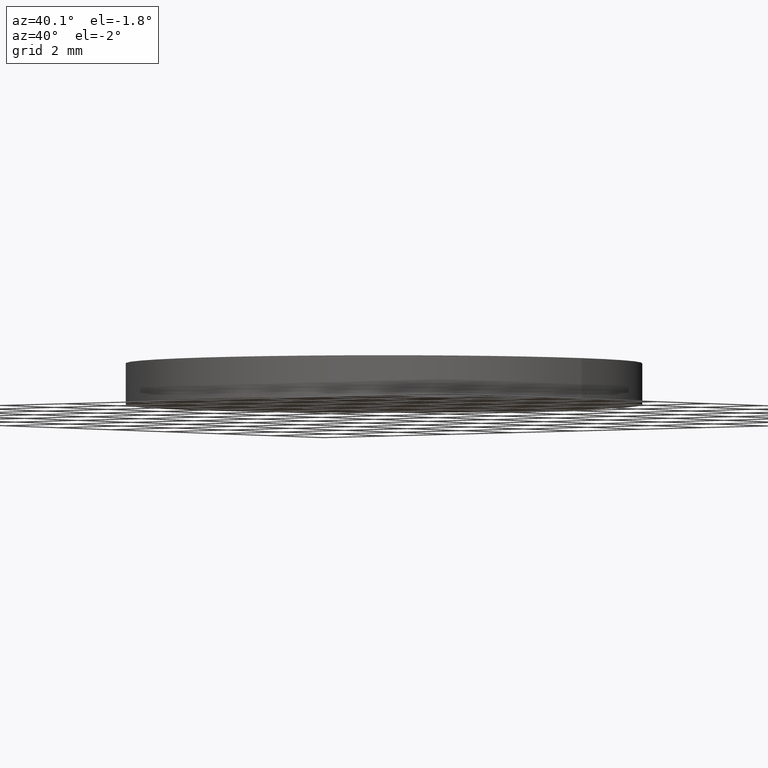
[diagram: clean part render]
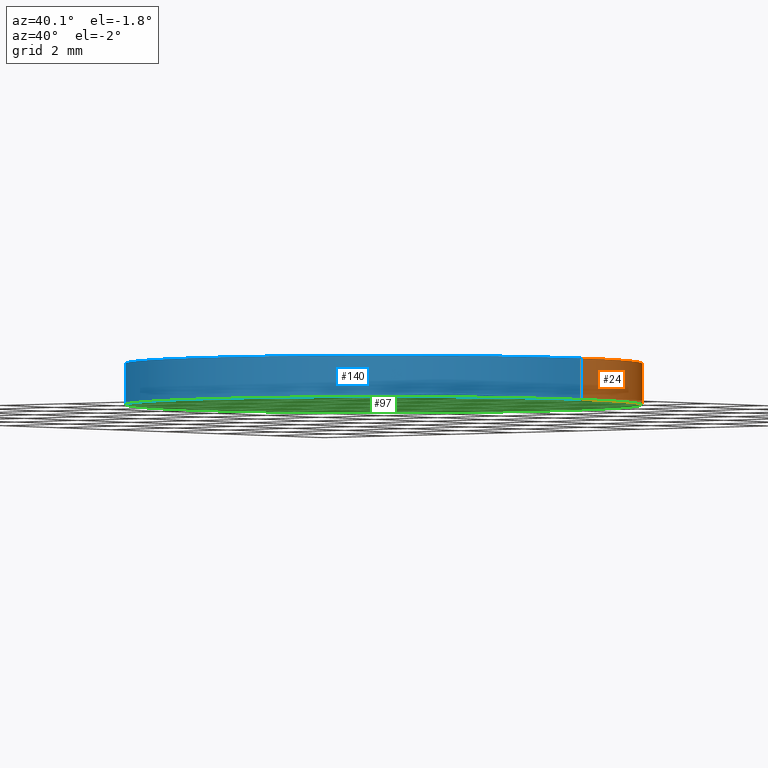
[diagram: same view with three faces highlighted in distinct colors, each labeled with its STEP entity id]
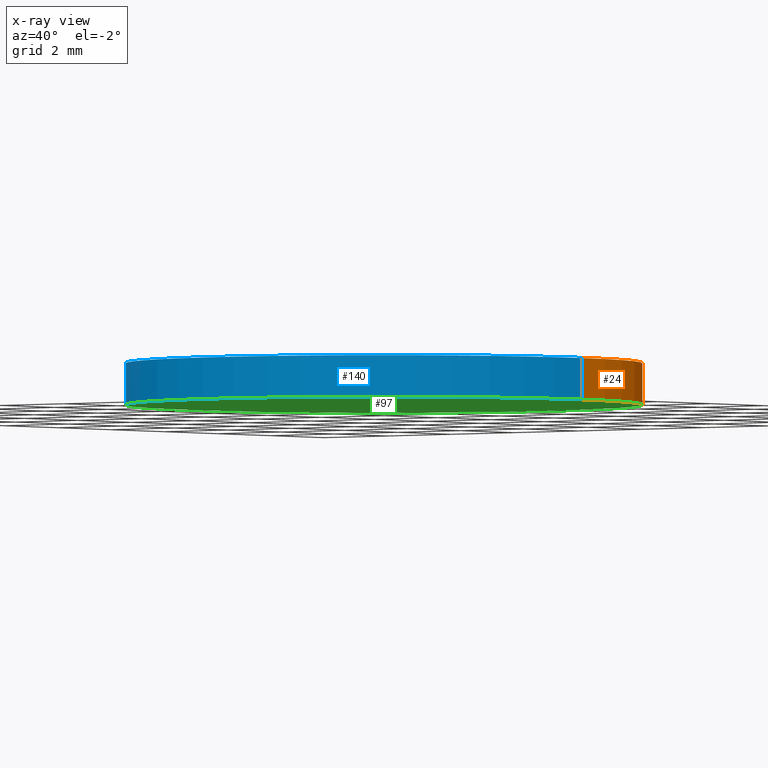
[diagram: x-ray of the same camera — body ghosted, the three highlighted faces saturated]
A machine part, auxiliary view with three faces highlighted in distinct colors.
The next image is the same camera in x-ray (body ghosted, the three faces saturated) — at least one of them is partly hidden behind the body in this view.
Their STEP definitions:

[orange] entity #24 — the highlighted cylindrical surface (partial cylindrical patch) has radius 6.25 mm, axis along (-0, -0, -1).
#3 = VERTEX_POINT ( 'NONE', #18 ) ;
#18 = CARTESIAN_POINT ( 'NONE',  ( -6.250000000000000000, 0.0000000000000000000, 1.000000000000000000 ) ) ;
#19 = CARTESIAN_POINT ( 'NONE',  ( 0.0000000000000000000, 0.0000000000000000000, 1.000000000000000000 ) ) ;
#21 = CYLINDRICAL_SURFACE ( 'NONE', #75, 6.250000000000000000 ) ;
#24 = ADVANCED_FACE ( 'NONE', ( #76 ), #21, .T. ) ;
#28 = EDGE_CURVE ( 'NONE', #98, #3, #107, .T. ) ;
#29 = DIRECTION ( 'NONE',  ( 0.0000000000000000000, 0.0000000000000000000, 1.000000000000000000 ) ) ;
#30 = DIRECTION ( 'NONE',  ( -0.0000000000000000000, -0.0000000000000000000, -1.000000000000000000 ) ) ;
#32 = DIRECTION ( 'NONE',  ( -0.0000000000000000000, -0.0000000000000000000, -1.000000000000000000 ) ) ;
#34 = EDGE_CURVE ( 'NONE', #85, #119, #53, .T. ) ;
#39 = DIRECTION ( 'NONE',  ( 0.0000000000000000000, 0.0000000000000000000, 1.000000000000000000 ) ) ;
#42 = AXIS2_PLACEMENT_3D ( 'NONE', #104, #39, #68 ) ;
#45 = LINE ( 'NONE', #92, #50 ) ;
#49 = AXIS2_PLACEMENT_3D ( 'NONE', #125, #29, #106 ) ;
#50 = VECTOR ( 'NONE', #30, 1000.000000000000000 ) ;
#53 = CIRCLE ( 'NONE', #49, 6.250000000000000000 ) ;
#54 = EDGE_CURVE ( 'NONE', #98, #85, #84, .T. ) ;
#59 = DIRECTION ( 'NONE',  ( -0.0000000000000000000, -0.0000000000000000000, -1.000000000000000000 ) ) ;
#62 = ORIENTED_EDGE ( 'NONE', *, *, #95, .F. ) ;
#68 = DIRECTION ( 'NONE',  ( 1.000000000000000000, 0.0000000000000000000, 0.0000000000000000000 ) ) ;
#72 = EDGE_LOOP ( 'NONE', ( #100, #115, #90, #62 ) ) ;
#75 = AXIS2_PLACEMENT_3D ( 'NONE', #19, #32, #103 ) ;
#76 = FACE_OUTER_BOUND ( 'NONE', #72, .T. ) ;
#84 = LINE ( 'NONE', #139, #131 ) ;
#85 = VERTEX_POINT ( 'NONE', #134 ) ;
#90 = ORIENTED_EDGE ( 'NONE', *, *, #34, .T. ) ;
#92 = CARTESIAN_POINT ( 'NONE',  ( -6.250000000000000000, 0.0000000000000000000, 1.000000000000000000 ) ) ;
#95 = EDGE_CURVE ( 'NONE', #3, #119, #45, .T. ) ;
#98 = VERTEX_POINT ( 'NONE', #113 ) ;
#100 = ORIENTED_EDGE ( 'NONE', *, *, #28, .F. ) ;
#103 = DIRECTION ( 'NONE',  ( -1.000000000000000000, 0.0000000000000000000, 0.0000000000000000000 ) ) ;
#104 = CARTESIAN_POINT ( 'NONE',  ( 0.0000000000000000000, 0.0000000000000000000, 1.000000000000000000 ) ) ;
#106 = DIRECTION ( 'NONE',  ( 1.000000000000000000, 0.0000000000000000000, 0.0000000000000000000 ) ) ;
#107 = CIRCLE ( 'NONE', #42, 6.250000000000000000 ) ;
#113 = CARTESIAN_POINT ( 'NONE',  ( 6.250000000000000000, 7.654042494670957600E-016, 1.000000000000000000 ) ) ;
#115 = ORIENTED_EDGE ( 'NONE', *, *, #54, .T. ) ;
#119 = VERTEX_POINT ( 'NONE', #124 ) ;
#124 = CARTESIAN_POINT ( 'NONE',  ( -6.250000000000000000, 0.0000000000000000000, 0.0000000000000000000 ) ) ;
#125 = CARTESIAN_POINT ( 'NONE',  ( 0.0000000000000000000, 0.0000000000000000000, 0.0000000000000000000 ) ) ;
#131 = VECTOR ( 'NONE', #59, 1000.000000000000000 ) ;
#134 = CARTESIAN_POINT ( 'NONE',  ( 6.250000000000000000, 7.654042494670957600E-016, 0.0000000000000000000 ) ) ;
#139 = CARTESIAN_POINT ( 'NONE',  ( 6.250000000000000000, 7.654042494670957600E-016, 1.000000000000000000 ) ) ;

[blue] entity #140 — the highlighted cylindrical surface (partial cylindrical patch) has radius 6.25 mm, axis along (-0, -0, -1).
#3 = VERTEX_POINT ( 'NONE', #18 ) ;
#8 = ORIENTED_EDGE ( 'NONE', *, *, #65, .T. ) ;
#18 = CARTESIAN_POINT ( 'NONE',  ( -6.250000000000000000, 0.0000000000000000000, 1.000000000000000000 ) ) ;
#20 = DIRECTION ( 'NONE',  ( 1.000000000000000000, 0.0000000000000000000, 0.0000000000000000000 ) ) ;
#22 = DIRECTION ( 'NONE',  ( 0.0000000000000000000, 0.0000000000000000000, 1.000000000000000000 ) ) ;
#25 = CARTESIAN_POINT ( 'NONE',  ( 0.0000000000000000000, 0.0000000000000000000, 0.0000000000000000000 ) ) ;
#30 = DIRECTION ( 'NONE',  ( -0.0000000000000000000, -0.0000000000000000000, -1.000000000000000000 ) ) ;
#35 = EDGE_LOOP ( 'NONE', ( #126, #94, #66, #8 ) ) ;
#45 = LINE ( 'NONE', #92, #50 ) ;
#48 = CARTESIAN_POINT ( 'NONE',  ( 0.0000000000000000000, 0.0000000000000000000, 1.000000000000000000 ) ) ;
#50 = VECTOR ( 'NONE', #30, 1000.000000000000000 ) ;
#54 = EDGE_CURVE ( 'NONE', #98, #85, #84, .T. ) ;
#55 = DIRECTION ( 'NONE',  ( 1.000000000000000000, 0.0000000000000000000, 0.0000000000000000000 ) ) ;
#56 = AXIS2_PLACEMENT_3D ( 'NONE', #25, #22, #55 ) ;
#58 = AXIS2_PLACEMENT_3D ( 'NONE', #129, #110, #121 ) ;
#59 = DIRECTION ( 'NONE',  ( -0.0000000000000000000, -0.0000000000000000000, -1.000000000000000000 ) ) ;
#64 = EDGE_CURVE ( 'NONE', #3, #98, #137, .T. ) ;
#65 = EDGE_CURVE ( 'NONE', #119, #85, #102, .T. ) ;
#66 = ORIENTED_EDGE ( 'NONE', *, *, #95, .T. ) ;
#67 = FACE_OUTER_BOUND ( 'NONE', #35, .T. ) ;
#71 = AXIS2_PLACEMENT_3D ( 'NONE', #48, #83, #20 ) ;
#83 = DIRECTION ( 'NONE',  ( 0.0000000000000000000, 0.0000000000000000000, 1.000000000000000000 ) ) ;
#84 = LINE ( 'NONE', #139, #131 ) ;
#85 = VERTEX_POINT ( 'NONE', #134 ) ;
#87 = CYLINDRICAL_SURFACE ( 'NONE', #58, 6.250000000000000000 ) ;
#92 = CARTESIAN_POINT ( 'NONE',  ( -6.250000000000000000, 0.0000000000000000000, 1.000000000000000000 ) ) ;
#94 = ORIENTED_EDGE ( 'NONE', *, *, #64, .F. ) ;
#95 = EDGE_CURVE ( 'NONE', #3, #119, #45, .T. ) ;
#98 = VERTEX_POINT ( 'NONE', #113 ) ;
#102 = CIRCLE ( 'NONE', #56, 6.250000000000000000 ) ;
#110 = DIRECTION ( 'NONE',  ( -0.0000000000000000000, -0.0000000000000000000, -1.000000000000000000 ) ) ;
#113 = CARTESIAN_POINT ( 'NONE',  ( 6.250000000000000000, 7.654042494670957600E-016, 1.000000000000000000 ) ) ;
#119 = VERTEX_POINT ( 'NONE', #124 ) ;
#121 = DIRECTION ( 'NONE',  ( -1.000000000000000000, 0.0000000000000000000, 0.0000000000000000000 ) ) ;
#124 = CARTESIAN_POINT ( 'NONE',  ( -6.250000000000000000, 0.0000000000000000000, 0.0000000000000000000 ) ) ;
#126 = ORIENTED_EDGE ( 'NONE', *, *, #54, .F. ) ;
#129 = CARTESIAN_POINT ( 'NONE',  ( 0.0000000000000000000, 0.0000000000000000000, 1.000000000000000000 ) ) ;
#131 = VECTOR ( 'NONE', #59, 1000.000000000000000 ) ;
#134 = CARTESIAN_POINT ( 'NONE',  ( 6.250000000000000000, 7.654042494670957600E-016, 0.0000000000000000000 ) ) ;
#137 = CIRCLE ( 'NONE', #71, 6.250000000000000000 ) ;
#139 = CARTESIAN_POINT ( 'NONE',  ( 6.250000000000000000, 7.654042494670957600E-016, 1.000000000000000000 ) ) ;
#140 = ADVANCED_FACE ( 'NONE', ( #67 ), #87, .T. ) ;

[green] entity #97 — the highlighted planar face has unit normal (0, 0, 1).
#4 = ORIENTED_EDGE ( 'NONE', *, *, #65, .F. ) ;
#10 = AXIS2_PLACEMENT_3D ( 'NONE', #111, #77, #122 ) ;
#22 = DIRECTION ( 'NONE',  ( 0.0000000000000000000, 0.0000000000000000000, 1.000000000000000000 ) ) ;
#25 = CARTESIAN_POINT ( 'NONE',  ( 0.0000000000000000000, 0.0000000000000000000, 0.0000000000000000000 ) ) ;
#29 = DIRECTION ( 'NONE',  ( 0.0000000000000000000, 0.0000000000000000000, 1.000000000000000000 ) ) ;
#34 = EDGE_CURVE ( 'NONE', #85, #119, #53, .T. ) ;
#44 = EDGE_LOOP ( 'NONE', ( #4, #69 ) ) ;
#49 = AXIS2_PLACEMENT_3D ( 'NONE', #125, #29, #106 ) ;
#53 = CIRCLE ( 'NONE', #49, 6.250000000000000000 ) ;
#55 = DIRECTION ( 'NONE',  ( 1.000000000000000000, 0.0000000000000000000, 0.0000000000000000000 ) ) ;
#56 = AXIS2_PLACEMENT_3D ( 'NONE', #25, #22, #55 ) ;
#65 = EDGE_CURVE ( 'NONE', #119, #85, #102, .T. ) ;
#69 = ORIENTED_EDGE ( 'NONE', *, *, #34, .F. ) ;
#77 = DIRECTION ( 'NONE',  ( 0.0000000000000000000, 0.0000000000000000000, 1.000000000000000000 ) ) ;
#78 = FACE_OUTER_BOUND ( 'NONE', #44, .T. ) ;
#85 = VERTEX_POINT ( 'NONE', #134 ) ;
#97 = ADVANCED_FACE ( 'NONE', ( #78 ), #128, .F. ) ;
#102 = CIRCLE ( 'NONE', #56, 6.250000000000000000 ) ;
#106 = DIRECTION ( 'NONE',  ( 1.000000000000000000, 0.0000000000000000000, 0.0000000000000000000 ) ) ;
#111 = CARTESIAN_POINT ( 'NONE',  ( 0.0000000000000000000, 0.0000000000000000000, 0.0000000000000000000 ) ) ;
#119 = VERTEX_POINT ( 'NONE', #124 ) ;
#122 = DIRECTION ( 'NONE',  ( 1.000000000000000000, 0.0000000000000000000, -0.0000000000000000000 ) ) ;
#124 = CARTESIAN_POINT ( 'NONE',  ( -6.250000000000000000, 0.0000000000000000000, 0.0000000000000000000 ) ) ;
#125 = CARTESIAN_POINT ( 'NONE',  ( 0.0000000000000000000, 0.0000000000000000000, 0.0000000000000000000 ) ) ;
#128 = PLANE ( 'NONE',  #10 ) ;
#134 = CARTESIAN_POINT ( 'NONE',  ( 6.250000000000000000, 7.654042494670957600E-016, 0.0000000000000000000 ) ) ;